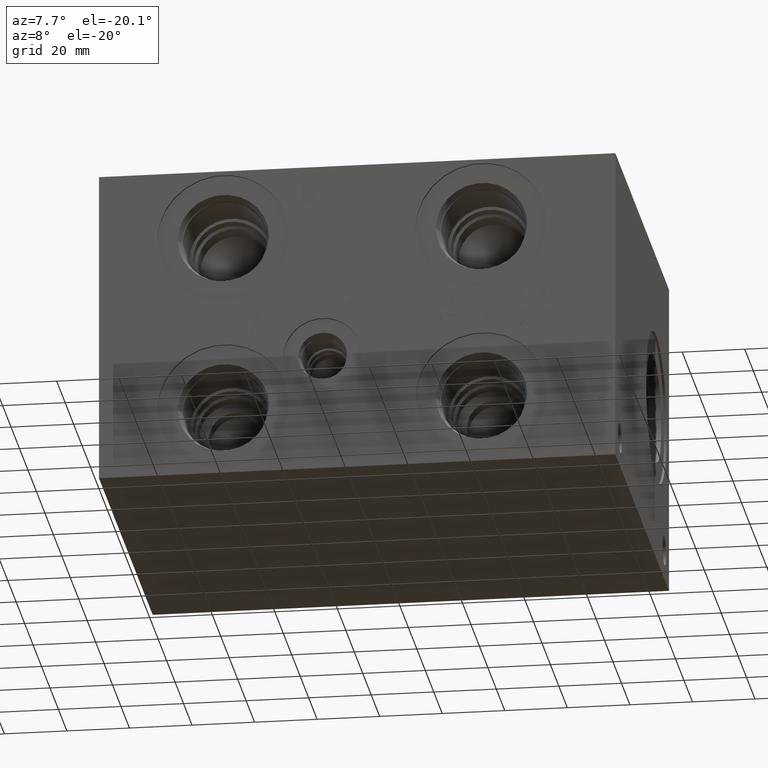
[diagram: clean part render]
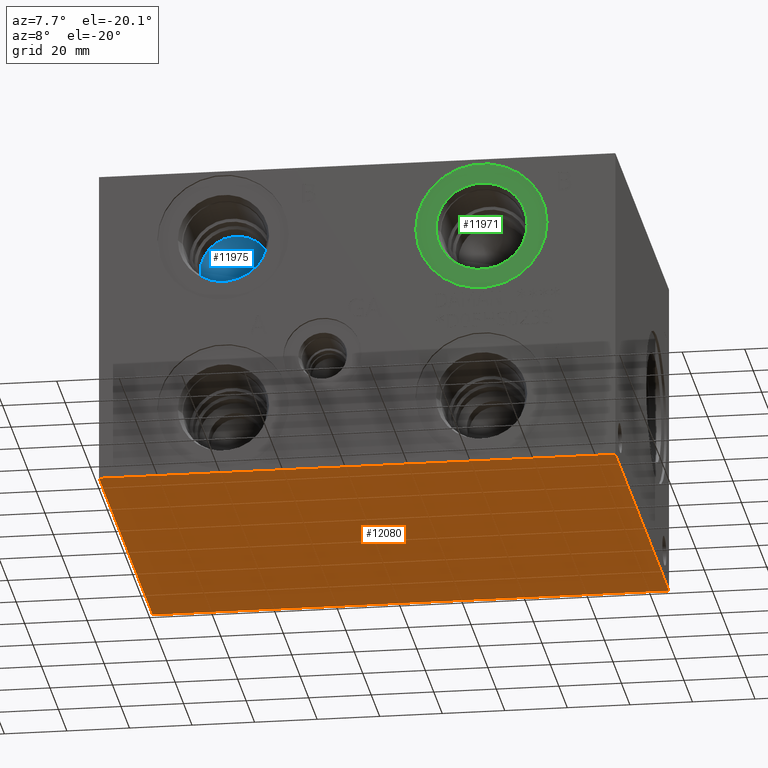
[diagram: same view with three faces highlighted in distinct colors, each labeled with its STEP entity id]
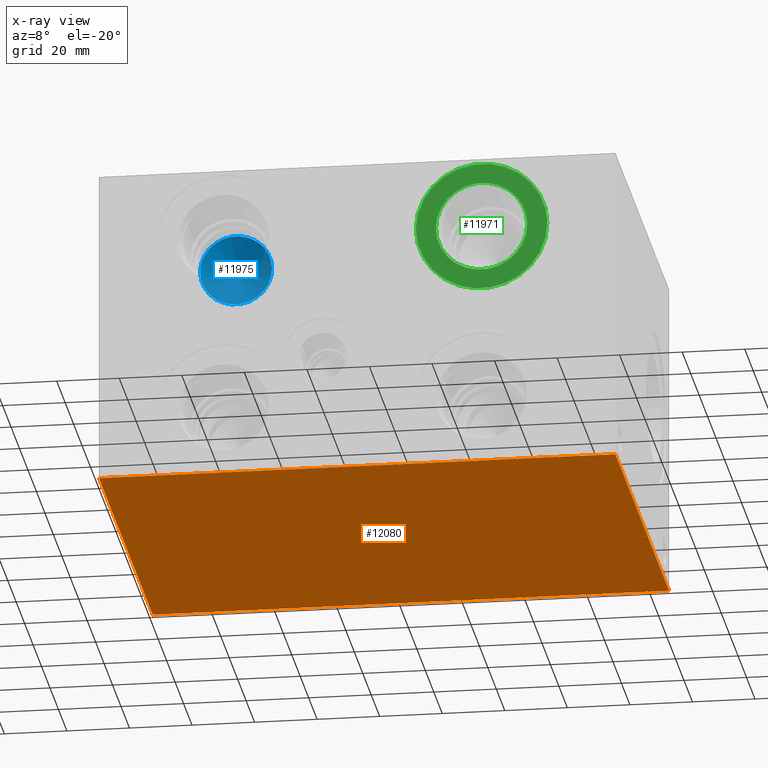
[diagram: x-ray of the same camera — body ghosted, the three highlighted faces saturated]
A machine part, auxiliary view with three faces highlighted in distinct colors.
The next image is the same camera in x-ray (body ghosted, the three faces saturated) — at least one of them is partly hidden behind the body in this view.
Their STEP definitions:

[orange] entity #12080 — the highlighted planar face has unit normal (0, 0, 1).
#1599=FACE_OUTER_BOUND('',#2314,.T.);
#2314=EDGE_LOOP('',(#10662,#10663,#10664,#10665));
#2371=LINE('',#15578,#3459);
#2677=LINE('',#18031,#3765);
#3398=LINE('',#20906,#4486);
#3401=LINE('',#20911,#4489);
#3459=VECTOR('',#12904,10.);
#3765=VECTOR('',#13374,10.);
#4486=VECTOR('',#15311,10.);
#4489=VECTOR('',#15316,10.);
#4539=VERTEX_POINT('',#15576);
#4540=VERTEX_POINT('',#15577);
#4893=VERTEX_POINT('',#18030);
#5639=VERTEX_POINT('',#20905);
#5713=EDGE_CURVE('',#4539,#4540,#2371,.T.);
#6239=EDGE_CURVE('',#4540,#4893,#2677,.T.);
#7311=EDGE_CURVE('',#5639,#4539,#3398,.T.);
#7314=EDGE_CURVE('',#4893,#5639,#3401,.T.);
#10662=ORIENTED_EDGE('',*,*,#6239,.F.);
#10663=ORIENTED_EDGE('',*,*,#5713,.F.);
#10664=ORIENTED_EDGE('',*,*,#7311,.F.);
#10665=ORIENTED_EDGE('',*,*,#7314,.F.);
#11002=PLANE('',#12807);
#12080=ADVANCED_FACE('',(#1599),#11002,.F.);
#12807=AXIS2_PLACEMENT_3D('',#20915,#15322,#15323);
#12904=DIRECTION('',(0.,-1.,0.));
#13374=DIRECTION('',(1.,0.,0.));
#15311=DIRECTION('',(-1.,0.,0.));
#15316=DIRECTION('',(0.,1.,0.));
#15322=DIRECTION('center_axis',(0.,0.,1.));
#15323=DIRECTION('ref_axis',(1.,0.,0.));
#15576=CARTESIAN_POINT('',(0.,127.,0.));
#15577=CARTESIAN_POINT('',(0.,0.,0.));
#15578=CARTESIAN_POINT('',(0.,127.,0.));
#18030=CARTESIAN_POINT('',(165.1,0.,0.));
#18031=CARTESIAN_POINT('',(0.,0.,0.));
#20905=CARTESIAN_POINT('',(165.1,127.,0.));
#20906=CARTESIAN_POINT('',(165.1,127.,0.));
#20911=CARTESIAN_POINT('',(165.1,0.,0.));
#20915=CARTESIAN_POINT('Origin',(82.55,63.5,0.));

[blue] entity #11975 — the highlighted conical surface has half-angle 60 deg.
#98=CONICAL_SURFACE('',#12535,5.7531,1.0471975511966);
#223=CIRCLE('',#12536,11.5062);
#224=CIRCLE('',#12537,11.5062);
#1494=FACE_OUTER_BOUND('',#2172,.T.);
#2172=EDGE_LOOP('',(#10116,#10117,#10118,#10119));
#3315=LINE('',#20371,#4403);
#4403=VECTOR('',#14694,5.7531);
#5452=VERTEX_POINT('',#20367);
#5453=VERTEX_POINT('',#20368);
#5454=VERTEX_POINT('',#20370);
#7061=EDGE_CURVE('',#5452,#5453,#223,.T.);
#7062=EDGE_CURVE('',#5453,#5454,#3315,.T.);
#7063=EDGE_CURVE('',#5453,#5452,#224,.T.);
#10116=ORIENTED_EDGE('',*,*,#7061,.T.);
#10117=ORIENTED_EDGE('',*,*,#7062,.T.);
#10118=ORIENTED_EDGE('',*,*,#7062,.F.);
#10119=ORIENTED_EDGE('',*,*,#7063,.T.);
#11975=ADVANCED_FACE('',(#1494),#98,.F.);
#12535=AXIS2_PLACEMENT_3D('',#20366,#14690,#14691);
#12536=AXIS2_PLACEMENT_3D('',#20369,#14692,#14693);
#12537=AXIS2_PLACEMENT_3D('',#20372,#14695,#14696);
#14690=DIRECTION('center_axis',(0.,-1.,0.));
#14691=DIRECTION('ref_axis',(1.,0.,0.));
#14692=DIRECTION('center_axis',(0.,-1.,0.));
#14693=DIRECTION('ref_axis',(1.,0.,0.));
#14694=DIRECTION('',(0.866025403784439,0.5,1.06057523872491E-16));
#14695=DIRECTION('center_axis',(0.,-1.,0.));
#14696=DIRECTION('ref_axis',(1.,0.,0.));
#20366=CARTESIAN_POINT('Origin',(39.6748,34.1885438336748,79.375));
#20367=CARTESIAN_POINT('',(51.181,30.86699,79.375));
#20368=CARTESIAN_POINT('',(28.1686,30.86699,79.375));
#20369=CARTESIAN_POINT('Origin',(39.6748,30.86699,79.375));
#20370=CARTESIAN_POINT('',(39.6748,37.5100976673497,79.375));
#20371=CARTESIAN_POINT('',(33.9217,34.1885438336748,79.375));
#20372=CARTESIAN_POINT('Origin',(39.6748,30.86699,79.375));

[green] entity #11971 — the highlighted planar face has unit normal (0, 1, 0).
#214=CIRCLE('',#12522,21.0185);
#215=CIRCLE('',#12523,21.0185);
#216=CIRCLE('',#12525,14.5923);
#217=CIRCLE('',#12526,14.5923);
#446=FACE_BOUND('',#2168,.T.);
#1490=FACE_OUTER_BOUND('',#2167,.T.);
#2167=EDGE_LOOP('',(#10095,#10096));
#2168=EDGE_LOOP('',(#10097,#10098));
#5443=VERTEX_POINT('',#20340);
#5444=VERTEX_POINT('',#20342);
#5445=VERTEX_POINT('',#20346);
#5446=VERTEX_POINT('',#20347);
#7049=EDGE_CURVE('',#5443,#5444,#214,.T.);
#7050=EDGE_CURVE('',#5444,#5443,#215,.T.);
#7051=EDGE_CURVE('',#5445,#5446,#216,.T.);
#7052=EDGE_CURVE('',#5446,#5445,#217,.T.);
#10095=ORIENTED_EDGE('',*,*,#7050,.F.);
#10096=ORIENTED_EDGE('',*,*,#7049,.F.);
#10097=ORIENTED_EDGE('',*,*,#7051,.T.);
#10098=ORIENTED_EDGE('',*,*,#7052,.T.);
#10979=PLANE('',#12524);
#11971=ADVANCED_FACE('',(#1490,#446),#10979,.F.);
#12522=AXIS2_PLACEMENT_3D('',#20343,#14661,#14662);
#12523=AXIS2_PLACEMENT_3D('',#20344,#14663,#14664);
#12524=AXIS2_PLACEMENT_3D('',#20345,#14665,#14666);
#12525=AXIS2_PLACEMENT_3D('',#20348,#14667,#14668);
#12526=AXIS2_PLACEMENT_3D('',#20349,#14669,#14670);
#14661=DIRECTION('center_axis',(0.,1.,0.));
#14662=DIRECTION('ref_axis',(1.,0.,0.));
#14663=DIRECTION('center_axis',(0.,1.,0.));
#14664=DIRECTION('ref_axis',(1.,0.,0.));
#14665=DIRECTION('center_axis',(0.,1.,0.));
#14666=DIRECTION('ref_axis',(0.,0.,1.));
#14667=DIRECTION('center_axis',(0.,1.,0.));
#14668=DIRECTION('ref_axis',(1.,0.,0.));
#14669=DIRECTION('center_axis',(0.,1.,0.));
#14670=DIRECTION('ref_axis',(1.,0.,0.));
#20340=CARTESIAN_POINT('',(101.2063,0.7874,79.375));
#20342=CARTESIAN_POINT('',(143.2433,0.7874,79.375));
#20343=CARTESIAN_POINT('Origin',(122.2248,0.7874,79.375));
#20344=CARTESIAN_POINT('Origin',(122.2248,0.7874,79.375));
#20345=CARTESIAN_POINT('Origin',(136.8171,0.7874,79.375));
#20346=CARTESIAN_POINT('',(136.8171,0.7874,79.375));
#20347=CARTESIAN_POINT('',(107.6325,0.7874,79.375));
#20348=CARTESIAN_POINT('Origin',(122.2248,0.7874,79.375));
#20349=CARTESIAN_POINT('Origin',(122.2248,0.7874,79.375));